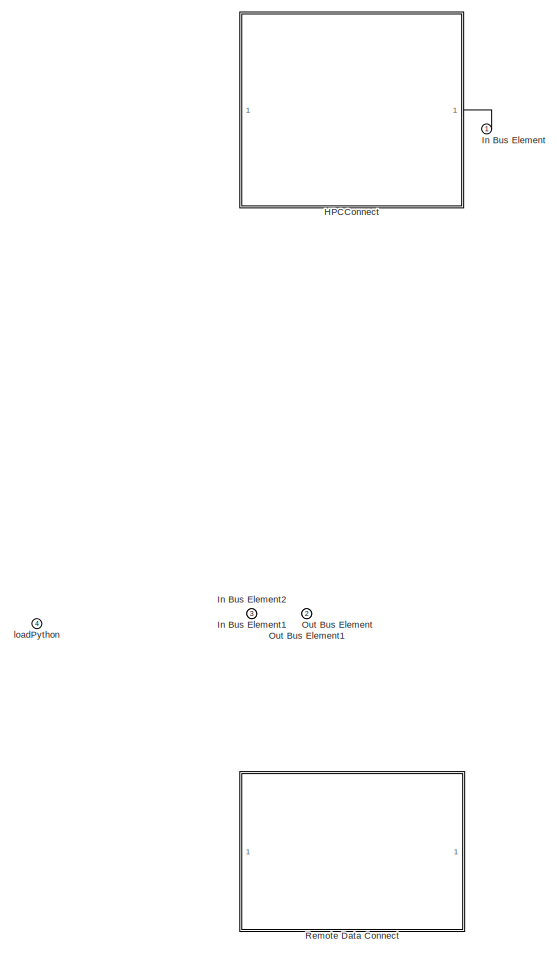
[diagram: root canvas - part 1/3, right side, full height]
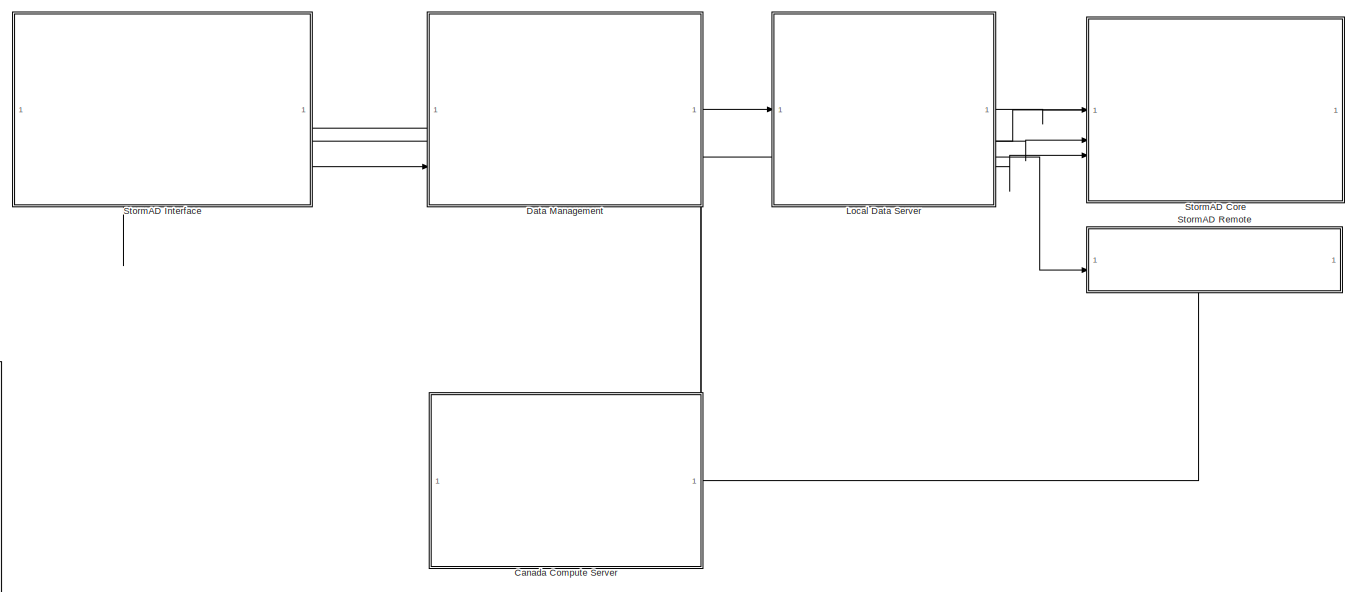
[diagram: root canvas - part 2/3, central region]
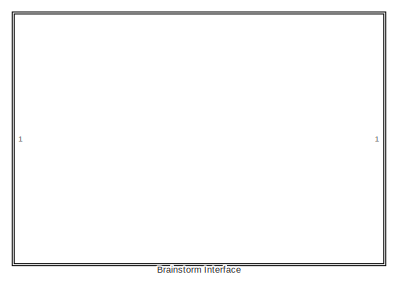
[diagram: root canvas - part 3/3, middle left region]
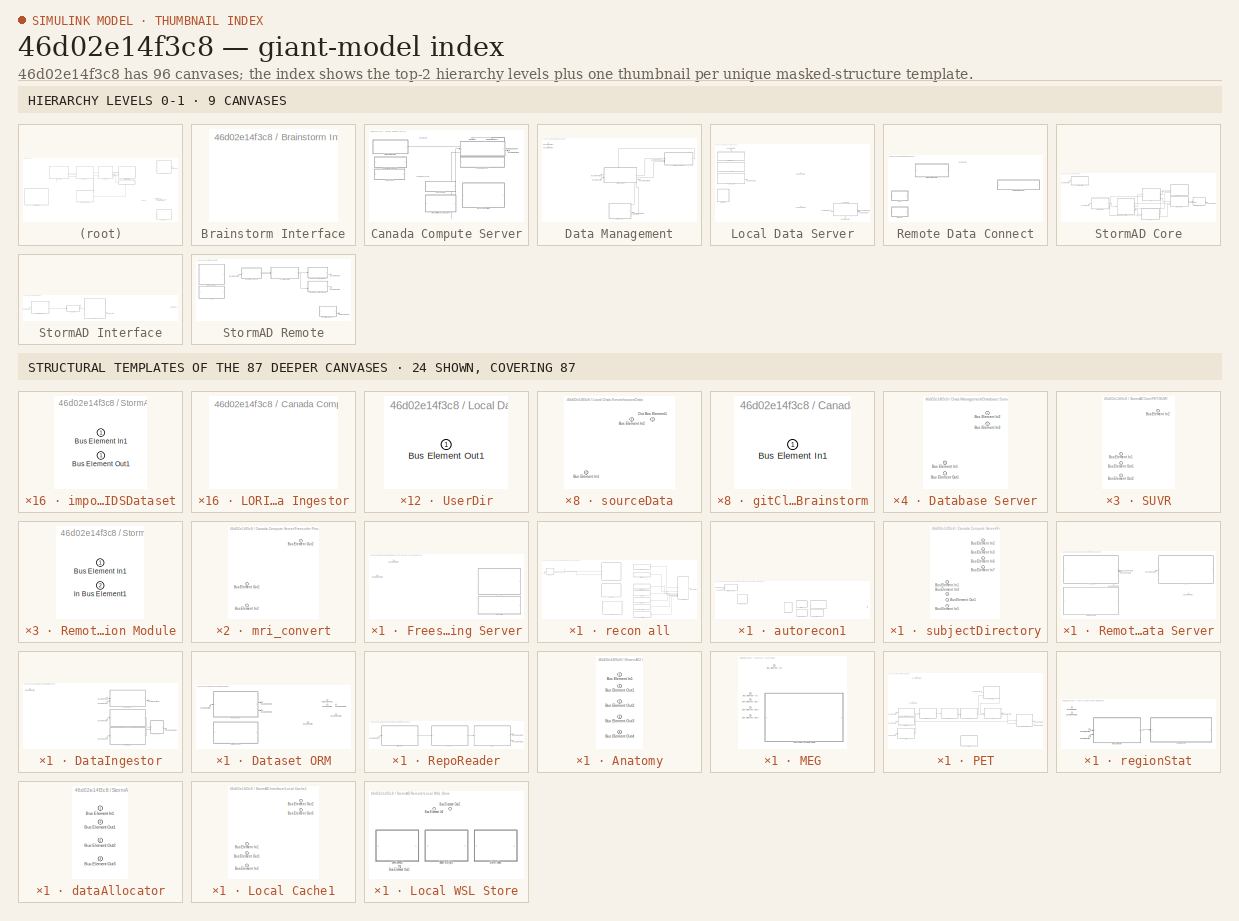
[diagram: thumbnail index - top-2 hierarchy levels (9 canvases) + 24 structural-template representatives of the remaining 87 canvases]
MODEL slx_46d02e14f3c8
KIND model
CONFIG AbsTol = auto
CONFIG EnableMultiTasking = off
CONFIG FixedStep = auto
CONFIG MaxStep = auto
CONFIG MinStep = auto
CONFIG RelTol = 1e-3
CONFIG SampleTimeConstraint = Unconstrained
CONFIG SolverName = FixedStepDiscrete
CONFIG StartTime = 0.0
CONFIG StopTime = 10.0
WORKSPACE source: mxarray member
WORKSPACE bstInterface: Simulink.Bus (value not decoded)
BLOCK [SubSystem] Brainstorm Interface
  PortSchema = {"entries":[{"content":{"headerSize":26,"margin":15,"minimumSpacing":25,"sides":[{"content":{},"type":"ConnectorPlacement.EquallySpacedRectSide","uuid":"7074e736-93ca-48e6-9107-0c0acde2c1e1"},{"content":{"side":"RIGHT"},"type":"ConnectorPlacement.EquallySpacedRectSide","uuid":"49ca3538-4b0a-47e3-9b9f-d0d67086357c"},{"content":{"side":"TOP"},"type":"ConnectorPlacement.EquallySpacedRectSide","uuid":...<+224ch>
BLOCK [SubSystem] Canada Compute Server
  PortSchema = {"entries":[{"content":{"headerSize":26,"margin":15,"minimumSpacing":25,"sides":[{"content":{},"type":"ConnectorPlacement.EquallySpacedRectSide","uuid":"7b7365e4-3e33-4b91-9d81-29acea824425"},{"content":{"connectorIds":["Out1"],"side":"RIGHT"},"type":"ConnectorPlacement.EquallySpacedRectSide","uuid":"c8185be4-14fd-4b07-9d64-196ce2484816"},{"content":{"connectorIds":["Out2","Out3"],"side":"TOP"},"t...<+279ch>
BLOCK [Outport] Canada Compute Server/Bus Element Out1
  AllowServiceAccess = on
BLOCK [SubSystem] Canada Compute Server/Freesurfer Processing Server
  PortSchema = {"entries":[{"content":{"headerSize":26,"margin":15,"minimumSpacing":25,"sides":[{"content":{"connectorIds":["In1"]},"type":"ConnectorPlacement.EquallySpacedRectSide","uuid":"d99db108-8c8a-4010-81b2-f142fbf318f5"},{"content":{"connectorIds":["Out1"],"side":"RIGHT"},"type":"ConnectorPlacement.EquallySpacedRectSide","uuid":"9190d96c-22e3-4cc9-a507-8f094dc67743"},{"content":{"side":"TOP"},"type":"Con...<+396ch>
BLOCK [Inport] Canada Compute Server/Freesurfer Processing Server/Bus Element In1
  AllowServiceAccess = on
BLOCK [Outport] Canada Compute Server/Freesurfer Processing Server/Bus Element Out1
BLOCK [SubSystem] Canada Compute Server/Freesurfer Processing Server/PETSurfer
  PortSchema = {"entries":[{"content":{"headerSize":26,"margin":15,"minimumSpacing":25,"sides":[{"content":{},"type":"ConnectorPlacement.EquallySpacedRectSide","uuid":"d99db108-8c8a-4010-81b2-f142fbf318f5"},{"content":{"connectorIds":["Out1"],"side":"RIGHT"},"type":"ConnectorPlacement.EquallySpacedRectSide","uuid":"9190d96c-22e3-4cc9-a507-8f094dc67743"},{"content":{"side":"TOP"},"type":"ConnectorPlacement.Equall...<+248ch>  <repeated x8 — deduplicated; at blocks: PETSurfer, labelDirectory, mriDirectory, scriptsDirectory, statsDirectory, surfDirectory, tmpDirectory, trashDirectory>
BLOCK [Outport] Canada Compute Server/Freesurfer Processing Server/PETSurfer/Bus Element Out1
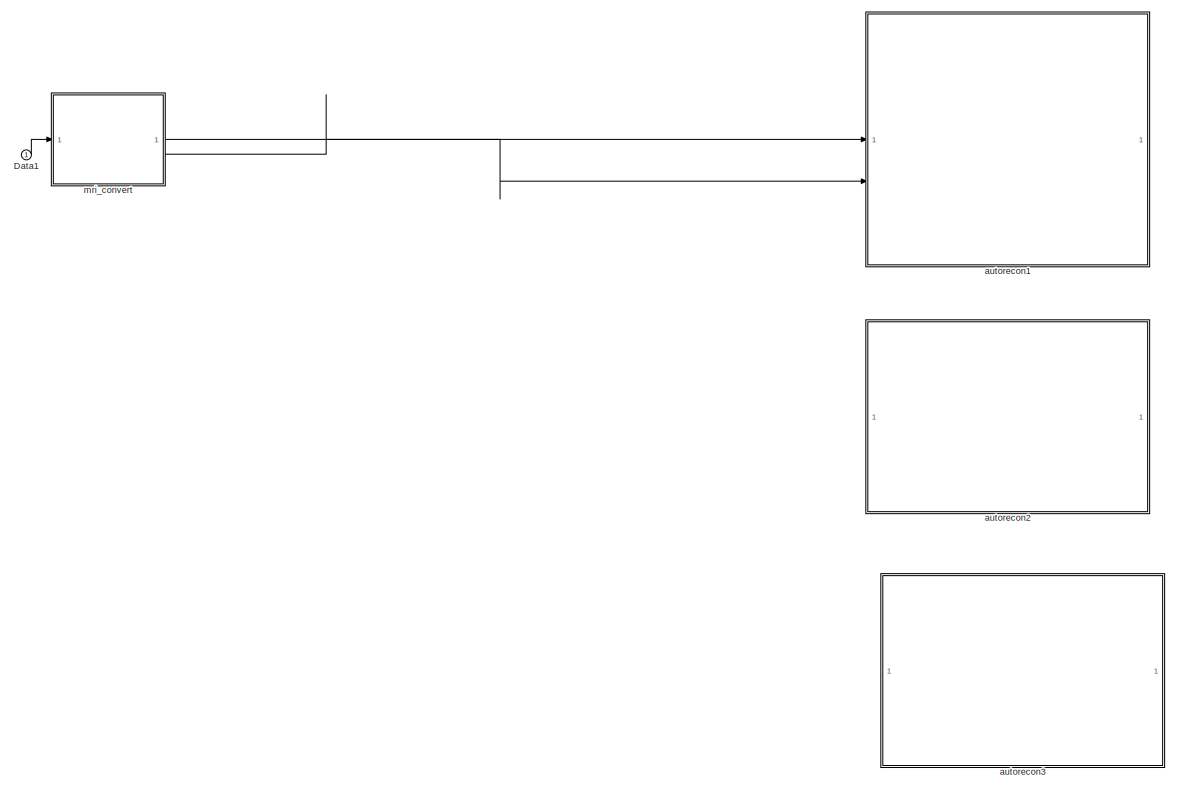
[diagram: Canada Compute Server/Freesurfer Processing Server/recon all - part 1/2, left side, full height]
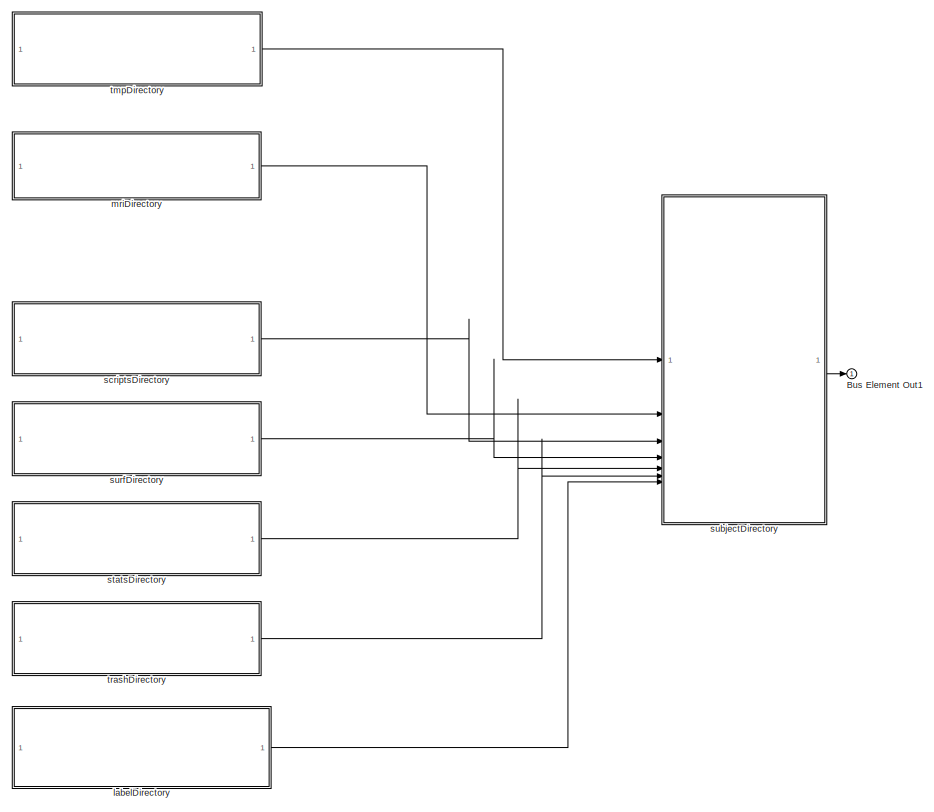
[diagram: Canada Compute Server/Freesurfer Processing Server/recon all - part 2/2, right side, full height]
BLOCK [SubSystem] Canada Compute Server/Freesurfer Processing Server/recon all
  PortSchema = {"entries":[{"content":{"headerSize":26,"margin":15,"minimumSpacing":25,"sides":[{"content":{"connectorIds":["In1"]},"type":"ConnectorPlacement.EquallySpacedRectSide","uuid":"1ec5f43e-86ec-4420-9dd8-c30b843d5131"},{"content":{"connectorIds":["Out1"],"side":"RIGHT"},"type":"ConnectorPlacement.EquallySpacedRectSide","uuid":"372e8174-47dc-4989-909e-f78b7a521fdc"},{"content":{"side":"TOP"},"type":"Con...<+270ch>
BLOCK [Outport] Canada Compute Server/Freesurfer Processing Server/recon all/Bus Element Out1
BLOCK [Inport] Canada Compute Server/Freesurfer Processing Server/recon all/Data1
  AllowServiceAccess = on
BLOCK [SubSystem] Canada Compute Server/Freesurfer Processing Server/recon all/autorecon1
  PortSchema = {"entries":[{"content":{"headerSize":26,"margin":15,"minimumSpacing":25,"sides":[{"content":{"connectorIds":["In1","In2"]},"type":"ConnectorPlacement.EquallySpacedRectSide","uuid":"1ec5f43e-86ec-4420-9dd8-c30b843d5131"},{"content":{"connectorIds":["Out1"],"side":"RIGHT"},"type":"ConnectorPlacement.EquallySpacedRectSide","uuid":"372e8174-47dc-4989-909e-f78b7a521fdc"},{"content":{"side":"TOP"},"type...<+276ch>
BLOCK [Inport] Canada Compute Server/Freesurfer Processing Server/recon all/autorecon1/Bus Element In1
  Port = 2
BLOCK [Inport] Canada Compute Server/Freesurfer Processing Server/recon all/autorecon1/Bus Element In2
BLOCK [SubSystem] Canada Compute Server/Freesurfer Processing Server/recon all/autorecon1/cp
  PortSchema = {"entries":[{"content":{"headerSize":26,"margin":15,"minimumSpacing":25,"sides":[{"content":{"connectorIds":["In1","In2"]},"type":"ConnectorPlacement.EquallySpacedRectSide","uuid":"d99db108-8c8a-4010-81b2-f142fbf318f5"},{"content":{"connectorIds":["Out1","Out2"],"side":"RIGHT"},"type":"ConnectorPlacement.EquallySpacedRectSide","uuid":"9190d96c-22e3-4cc9-a507-8f094dc67743"},{"content":{"side":"TOP"...<+283ch>
BLOCK [Inport] Canada Compute Server/Freesurfer Processing Server/recon all/autorecon1/cp/Bus Element In1
BLOCK [Inport] Canada Compute Server/Freesurfer Processing Server/recon all/autorecon1/cp/Bus Element In2
  Port = 2
BLOCK [Outport] Canada Compute Server/Freesurfer Processing Server/recon all/autorecon1/cp/Bus Element Out1
BLOCK [Outport] Canada Compute Server/Freesurfer Processing Server/recon all/autorecon1/cp/Bus Element Out2
  Port = 2
BLOCK [Outport] Canada Compute Server/Freesurfer Processing Server/recon all/autorecon1/mri2
BLOCK [SubSystem] Canada Compute Server/Freesurfer Processing Server/recon all/autorecon1/mri_convert_2
  PortSchema = {"entries":[{"content":{"headerSize":26,"margin":15,"minimumSpacing":25,"sides":[{"content":{"connectorIds":["In1"]},"type":"ConnectorPlacement.EquallySpacedRectSide","uuid":"d99db108-8c8a-4010-81b2-f142fbf318f5"},{"content":{"connectorIds":["Out1"],"side":"RIGHT"},"type":"ConnectorPlacement.EquallySpacedRectSide","uuid":"9190d96c-22e3-4cc9-a507-8f094dc67743"},{"content":{"side":"TOP"},"type":"Con...<+270ch>  <repeated x8 — deduplicated; at blocks: mri_convert_2, mri_normalize, mri_nu_correct, mri_watershed, talairach, getDerivatives, getRawData, availableDatasetsUI>
BLOCK [Inport] Canada Compute Server/Freesurfer Processing Server/recon all/autorecon1/mri_convert_2/Bus Element In1
BLOCK [Outport] Canada Compute Server/Freesurfer Processing Server/recon all/autorecon1/mri_convert_2/Bus Element Out1
BLOCK [SubSystem] Canada Compute Server/Freesurfer Processing Server/recon all/autorecon1/mri_motion_correct
  PortSchema = {"entries":[{"content":{"headerSize":26,"margin":15,"minimumSpacing":25,"sides":[{"content":{"connectorIds":["In1","In2"]},"type":"ConnectorPlacement.EquallySpacedRectSide","uuid":"d99db108-8c8a-4010-81b2-f142fbf318f5"},{"content":{"connectorIds":["Out1"],"side":"RIGHT"},"type":"ConnectorPlacement.EquallySpacedRectSide","uuid":"9190d96c-22e3-4cc9-a507-8f094dc67743"},{"content":{"side":"TOP"},"type...<+276ch>
BLOCK [Inport] Canada Compute Server/Freesurfer Processing Server/recon all/autorecon1/mri_motion_correct/Bus Element In1
BLOCK [Inport] Canada Compute Server/Freesurfer Processing Server/recon all/autorecon1/mri_motion_correct/Bus Element In2
  Port = 2
BLOCK [Outport] Canada Compute Server/Freesurfer Processing Server/recon all/autorecon1/mri_motion_correct/Bus Element Out1
BLOCK [SubSystem] Canada Compute Server/Freesurfer Processing Server/recon all/autorecon1/mri_normalize
BLOCK [Inport] Canada Compute Server/Freesurfer Processing Server/recon all/autorecon1/mri_normalize/Bus Element In1
BLOCK [Outport] Canada Compute Server/Freesurfer Processing Server/recon all/autorecon1/mri_normalize/Bus Element Out1
BLOCK [SubSystem] Canada Compute Server/Freesurfer Processing Server/recon all/autorecon1/mri_nu_correct
BLOCK [Inport] Canada Compute Server/Freesurfer Processing Server/recon all/autorecon1/mri_nu_correct/Bus Element In1
BLOCK [Outport] Canada Compute Server/Freesurfer Processing Server/recon all/autorecon1/mri_nu_correct/Bus Element Out1
BLOCK [SubSystem] Canada Compute Server/Freesurfer Processing Server/recon all/autorecon1/mri_watershed
BLOCK [Inport] Canada Compute Server/Freesurfer Processing Server/recon all/autorecon1/mri_watershed/Bus Element In1
BLOCK [Outport] Canada Compute Server/Freesurfer Processing Server/recon all/autorecon1/mri_watershed/Bus Element Out1
BLOCK [SubSystem] Canada Compute Server/Freesurfer Processing Server/recon all/autorecon1/talairach
BLOCK [Inport] Canada Compute Server/Freesurfer Processing Server/recon all/autorecon1/talairach/Bus Element In1
BLOCK [Outport] Canada Compute Server/Freesurfer Processing Server/recon all/autorecon1/talairach/Bus Element Out1
BLOCK [SubSystem] Canada Compute Server/Freesurfer Processing Server/recon all/autorecon2
  PortSchema = {"entries":[{"content":{"headerSize":26,"margin":15,"minimumSpacing":25,"sides":[{"content":{},"type":"ConnectorPlacement.EquallySpacedRectSide","uuid":"d99db108-8c8a-4010-81b2-f142fbf318f5"},{"content":{"side":"RIGHT"},"type":"ConnectorPlacement.EquallySpacedRectSide","uuid":"9190d96c-22e3-4cc9-a507-8f094dc67743"},{"content":{"connectorIds":["In1"],"side":"TOP"},"type":"ConnectorPlacement.Equally...<+247ch>
BLOCK [Inport] Canada Compute Server/Freesurfer Processing Server/recon all/autorecon2/Bus Element In1
BLOCK [SubSystem] Canada Compute Server/Freesurfer Processing Server/recon all/autorecon3
  PortSchema = {"entries":[{"content":{"headerSize":26,"margin":15,"minimumSpacing":25,"sides":[{"content":{},"type":"ConnectorPlacement.EquallySpacedRectSide","uuid":"d99db108-8c8a-4010-81b2-f142fbf318f5"},{"content":{"side":"RIGHT"},"type":"ConnectorPlacement.EquallySpacedRectSide","uuid":"9190d96c-22e3-4cc9-a507-8f094dc67743"},{"content":{"side":"TOP"},"type":"ConnectorPlacement.EquallySpacedRectSide","uuid":...<+224ch>
BLOCK [SubSystem] Canada Compute Server/Freesurfer Processing Server/recon all/labelDirectory
BLOCK [Outport] Canada Compute Server/Freesurfer Processing Server/recon all/labelDirectory/Bus Element Out1
BLOCK [SubSystem] Canada Compute Server/Freesurfer Processing Server/recon all/mriDirectory
BLOCK [Outport] Canada Compute Server/Freesurfer Processing Server/recon all/mriDirectory/Bus Element Out1
BLOCK [SubSystem] Canada Compute Server/Freesurfer Processing Server/recon all/mri_convert
  PortSchema = {"entries":[{"content":{"headerSize":26,"margin":15,"minimumSpacing":25,"sides":[{"content":{"connectorIds":["In1"]},"type":"ConnectorPlacement.EquallySpacedRectSide","uuid":"d99db108-8c8a-4010-81b2-f142fbf318f5"},{"content":{"connectorIds":["Out1","Out2"],"side":"RIGHT"},"type":"ConnectorPlacement.EquallySpacedRectSide","uuid":"9190d96c-22e3-4cc9-a507-8f094dc67743"},{"content":{"side":"TOP"},"typ...<+277ch>
BLOCK [Inport] Canada Compute Server/Freesurfer Processing Server/recon all/mri_convert/Bus Element In2
  AllowServiceAccess = on
BLOCK [Outport] Canada Compute Server/Freesurfer Processing Server/recon all/mri_convert/Bus Element Out1
  Port = 2
BLOCK [Outport] Canada Compute Server/Freesurfer Processing Server/recon all/mri_convert/Bus Element Out2
BLOCK [SubSystem] Canada Compute Server/Freesurfer Processing Server/recon all/scriptsDirectory
BLOCK [Outport] Canada Compute Server/Freesurfer Processing Server/recon all/scriptsDirectory/Bus Element Out1
BLOCK [SubSystem] Canada Compute Server/Freesurfer Processing Server/recon all/statsDirectory
BLOCK [Outport] Canada Compute Server/Freesurfer Processing Server/recon all/statsDirectory/Bus Element Out1
BLOCK [SubSystem] Canada Compute Server/Freesurfer Processing Server/recon all/subjectDirectory
  PortSchema = {"entries":[{"content":{"headerSize":26,"margin":15,"minimumSpacing":25,"sides":[{"content":{"connectorIds":["In1","In2","In3","In4","In5","In6","In7"]},"type":"ConnectorPlacement.EquallySpacedRectSide","uuid":"d99db108-8c8a-4010-81b2-f142fbf318f5"},{"content":{"connectorIds":["Out1"],"side":"RIGHT"},"type":"ConnectorPlacement.EquallySpacedRectSide","uuid":"9190d96c-22e3-4cc9-a507-8f094dc67743"},{...<+306ch>
BLOCK [Inport] Canada Compute Server/Freesurfer Processing Server/recon all/subjectDirectory/Bus Element In1
  Port = 5
BLOCK [Inport] Canada Compute Server/Freesurfer Processing Server/recon all/subjectDirectory/Bus Element In2
  Port = 3
BLOCK [Inport] Canada Compute Server/Freesurfer Processing Server/recon all/subjectDirectory/Bus Element In3
  Port = 4
BLOCK [Inport] Canada Compute Server/Freesurfer Processing Server/recon all/subjectDirectory/Bus Element In4
  Port = 6
BLOCK [Inport] Canada Compute Server/Freesurfer Processing Server/recon all/subjectDirectory/Bus Element In5
  Port = 7
BLOCK [Inport] Canada Compute Server/Freesurfer Processing Server/recon all/subjectDirectory/Bus Element In6
  Port = 2
BLOCK [Inport] Canada Compute Server/Freesurfer Processing Server/recon all/subjectDirectory/Bus Element In7
BLOCK [Outport] Canada Compute Server/Freesurfer Processing Server/recon all/subjectDirectory/Bus Element Out1
BLOCK [SubSystem] Canada Compute Server/Freesurfer Processing Server/recon all/surfDirectory
BLOCK [Outport] Canada Compute Server/Freesurfer Processing Server/recon all/surfDirectory/Bus Element Out1
BLOCK [SubSystem] Canada Compute Server/Freesurfer Processing Server/recon all/tmpDirectory
BLOCK [Outport] Canada Compute Server/Freesurfer Processing Server/recon all/tmpDirectory/Bus Element Out1
BLOCK [SubSystem] Canada Compute Server/Freesurfer Processing Server/recon all/trashDirectory
BLOCK [Outport] Canada Compute Server/Freesurfer Processing Server/recon all/trashDirectory/Bus Element Out1
BLOCK [SubSystem] Canada Compute Server/LORIS Data Ingestor
  PortSchema = {"entries":[{"content":{"headerSize":26,"margin":15,"minimumSpacing":25,"sides":[{"content":{},"type":"ConnectorPlacement.EquallySpacedRectSide","uuid":"a3539b9a-22db-4da3-b271-35b287ced3a1"},{"content":{"side":"RIGHT"},"type":"ConnectorPlacement.EquallySpacedRectSide","uuid":"72d9f298-5062-46d4-b3c5-f2fa85d7a7a6"},{"content":{"side":"TOP"},"type":"ConnectorPlacement.EquallySpacedRectSide","uuid":...<+224ch>  <repeated x9 — deduplicated; at blocks: LORIS Data Ingestor, derivativesData, create Virtual Environment, jobScheduler, loadPython, processingSoftware, brainstorm3, featureExtractionModule>
BLOCK [SubSystem] Canada Compute Server/Remote Data Server
  PortSchema = {"entries":[{"content":{"headerSize":26,"margin":15,"minimumSpacing":25,"sides":[{"content":{"connectorIds":["Out1","In1"]},"type":"ConnectorPlacement.EquallySpacedRectSide","uuid":"d99db108-8c8a-4010-81b2-f142fbf318f5"},{"content":{"connectorIds":["Out2"],"side":"RIGHT"},"type":"ConnectorPlacement.EquallySpacedRectSide","uuid":"9190d96c-22e3-4cc9-a507-8f094dc67743"},{"content":{"connectorIds":["O...<+434ch>
BLOCK [SubSystem] Canada Compute Server/Remote Data Server/ sourceData
  PortSchema = {"entries":[{"content":{"headerSize":26,"margin":15,"minimumSpacing":25,"sides":[{"content":{},"type":"ConnectorPlacement.EquallySpacedRectSide","uuid":"a3539b9a-22db-4da3-b271-35b287ced3a1"},{"content":{"connectorIds":["Out1"],"side":"RIGHT"},"type":"ConnectorPlacement.EquallySpacedRectSide","uuid":"72d9f298-5062-46d4-b3c5-f2fa85d7a7a6"},{"content":{"side":"TOP"},"type":"ConnectorPlacement.Equall...<+248ch>  <repeated x3 — deduplicated; at blocks: sourceData, UserDir, remoteConfig>
BLOCK [Outport] Canada Compute Server/Remote Data Server/ sourceData/Bus Element Out1
  AllowServiceAccess = on
BLOCK [Inport] Canada Compute Server/Remote Data Server/Bus Element In1
BLOCK [Outport] Canada Compute Server/Remote Data Server/Bus Element Out1
  AllowServiceAccess = on
  Port = 3
BLOCK [Outport] Canada Compute Server/Remote Data Server/Bus Element Out2
  AllowServiceAccess = on
  Port = 4
BLOCK [Outport] Canada Compute Server/Remote Data Server/Bus Element Out3
  AllowServiceAccess = on
  Port = 2
BLOCK [Outport] Canada Compute Server/Remote Data Server/Bus Element Out4
  AllowServiceAccess = on
BLOCK [SubSystem] Canada Compute Server/Remote Data Server/Home
  PortSchema = {"entries":[{"content":{"headerSize":26,"margin":15,"minimumSpacing":25,"sides":[{"content":{"connectorIds":["Out1"]},"type":"ConnectorPlacement.EquallySpacedRectSide","uuid":"a3539b9a-22db-4da3-b271-35b287ced3a1"},{"content":{"side":"RIGHT"},"type":"ConnectorPlacement.EquallySpacedRectSide","uuid":"72d9f298-5062-46d4-b3c5-f2fa85d7a7a6"},{"content":{"side":"TOP"},"type":"ConnectorPlacement.Equally...<+247ch>
BLOCK [Outport] Canada Compute Server/Remote Data Server/Home/Bus Element Out1
  AllowServiceAccess = on
BLOCK [SubSystem] Canada Compute Server/Remote Data Server/derivativesData
BLOCK [SubSystem] Canada Compute Server/create Virtual Environment
BLOCK [SubSystem] Canada Compute Server/gitClone Brainstorm
  PortSchema = {"entries":[{"content":{"headerSize":26,"margin":15,"minimumSpacing":25,"sides":[{"content":{},"type":"ConnectorPlacement.EquallySpacedRectSide","uuid":"a3539b9a-22db-4da3-b271-35b287ced3a1"},{"content":{"connectorIds":["In1"],"side":"RIGHT"},"type":"ConnectorPlacement.EquallySpacedRectSide","uuid":"72d9f298-5062-46d4-b3c5-f2fa85d7a7a6"},{"content":{"side":"TOP"},"type":"ConnectorPlacement.Equally...<+247ch>
BLOCK [Inport] Canada Compute Server/gitClone Brainstorm/Bus Element In1
  AllowServiceAccess = on
BLOCK [SubSystem] Canada Compute Server/jobScheduler
BLOCK [SubSystem] Canada Compute Server/loadPython
BLOCK [SubSystem] Canada Compute Server/processingSoftware
BLOCK [Outport] Canada Compute Server/remote.derivatives1
  AllowServiceAccess = on
  Port = 3
BLOCK [Outport] Canada Compute Server/remote.raw1
  AllowServiceAccess = on
  Port = 2
BLOCK [SubSystem] Data Management
  PortSchema = {"entries":[{"content":{"headerSize":26,"margin":15,"minimumSpacing":25,"sides":[{"content":{"connectorIds":["In4","Out3"]},"type":"ConnectorPlacement.EquallySpacedRectSide","uuid":"a3539b9a-22db-4da3-b271-35b287ced3a1"},{"content":{"connectorIds":["In3","Out1"],"side":"RIGHT"},"type":"ConnectorPlacement.EquallySpacedRectSide","uuid":"72d9f298-5062-46d4-b3c5-f2fa85d7a7a6"},{"content":{"connectorId...<+462ch>
BLOCK [Inport] Data Management/Bus Element In1
  Port = 4
BLOCK [Inport] Data Management/Bus Element In2
  Port = 3
BLOCK [Inport] Data Management/Bus Element In3
  AllowServiceAccess = on
BLOCK [Inport] Data Management/Bus Element In4
  AllowServiceAccess = on
  Port = 2
BLOCK [Outport] Data Management/Bus Element Out1
BLOCK [Outport] Data Management/Bus Element Out2
  AllowServiceAccess = on
  Port = 3
BLOCK [Outport] Data Management/Bus Element Out3
  Port = 2
BLOCK [SubSystem] Data Management/DataIngestor
  PortSchema = {"entries":[{"content":{"headerSize":26,"margin":15,"minimumSpacing":25,"sides":[{"content":{},"type":"ConnectorPlacement.EquallySpacedRectSide","uuid":"d99db108-8c8a-4010-81b2-f142fbf318f5"},{"content":{"connectorIds":["Out1"],"side":"RIGHT"},"type":"ConnectorPlacement.EquallySpacedRectSide","uuid":"9190d96c-22e3-4cc9-a507-8f094dc67743"},{"content":{"connectorIds":["In3","Out2"],"side":"TOP"},"ty...<+433ch>
BLOCK [Inport] Data Management/DataIngestor/Bus Element In1
  Port = 3
BLOCK [Inport] Data Management/DataIngestor/Bus Element In2
  AllowServiceAccess = on
BLOCK [Inport] Data Management/DataIngestor/Bus Element In3
  AllowServiceAccess = on
  Port = 2
BLOCK [Inport] Data Management/DataIngestor/Bus Element In4
  AllowServiceAccess = on
BLOCK [Inport] Data Management/DataIngestor/Bus Element In5
  AllowServiceAccess = on
  Port = 2
BLOCK [Outport] Data Management/DataIngestor/Bus Element Out1
BLOCK [Outport] Data Management/DataIngestor/Bus Element Out3
  Port = 2
BLOCK [SubSystem] Data Management/DataIngestor/Component
  PortSchema = {"entries":[{"content":{"headerSize":26,"margin":15,"minimumSpacing":25,"sides":[{"content":{"connectorIds":["In1","In2"]},"type":"ConnectorPlacement.EquallySpacedRectSide","uuid":"a3539b9a-22db-4da3-b271-35b287ced3a1"},{"content":{"connectorIds":["Out1"],"side":"RIGHT"},"type":"ConnectorPlacement.EquallySpacedRectSide","uuid":"72d9f298-5062-46d4-b3c5-f2fa85d7a7a6"},{"content":{"side":"TOP"},"type...<+276ch>  <repeated x3 — deduplicated; at blocks: Component, align2anat, maskSelector>
BLOCK [Inport] Data Management/DataIngestor/Component/Bus Element In1
  Port = 2
BLOCK [Inport] Data Management/DataIngestor/Component/Bus Element In2
BLOCK [Outport] Data Management/DataIngestor/Component/Bus Element Out1
BLOCK [SubSystem] Data Management/DataIngestor/getDerivatives
BLOCK [Inport] Data Management/DataIngestor/getDerivatives/Bus Element In1
  AllowServiceAccess = on
BLOCK [Outport] Data Management/DataIngestor/getDerivatives/Bus Element Out1
BLOCK [SubSystem] Data Management/DataIngestor/getRawData
BLOCK [Inport] Data Management/DataIngestor/getRawData/Bus Element In1
  AllowServiceAccess = on
BLOCK [Outport] Data Management/DataIngestor/getRawData/Bus Element Out1
BLOCK [SubSystem] Data Management/DataIngestor/readDataset
  PortSchema = {"entries":[{"content":{"headerSize":26,"margin":15,"minimumSpacing":25,"sides":[{"content":{"connectorIds":["In1","In2"]},"type":"ConnectorPlacement.EquallySpacedRectSide","uuid":"d99db108-8c8a-4010-81b2-f142fbf318f5"},{"content":{"connectorIds":["Out1"],"side":"RIGHT"},"type":"ConnectorPlacement.EquallySpacedRectSide","uuid":"9190d96c-22e3-4cc9-a507-8f094dc67743"},{"content":{"side":"TOP"},"type...<+276ch>
BLOCK [Inport] Data Management/DataIngestor/readDataset/Bus Element In1
  AllowServiceAccess = on
BLOCK [Inport] Data Management/DataIngestor/readDataset/Bus Element In2
  AllowServiceAccess = on
  Port = 2
BLOCK [Outport] Data Management/DataIngestor/readDataset/Bus Element Out1
BLOCK [SubSystem] Data Management/Database Server
  PortSchema = {"entries":[{"content":{"headerSize":26,"margin":15,"minimumSpacing":25,"sides":[{"content":{"connectorIds":["In1","In2","In3"]},"type":"ConnectorPlacement.EquallySpacedRectSide","uuid":"d99db108-8c8a-4010-81b2-f142fbf318f5"},{"content":{"connectorIds":["Out1"],"side":"RIGHT"},"type":"ConnectorPlacement.EquallySpacedRectSide","uuid":"9190d96c-22e3-4cc9-a507-8f094dc67743"},{"content":{"side":"TOP"}...<+408ch>
BLOCK [Inport] Data Management/Database Server/Bus Element In1
  Port = 3
BLOCK [Inport] Data Management/Database Server/Bus Element In2
BLOCK [Inport] Data Management/Database Server/Bus Element In3
  Port = 2
BLOCK [Outport] Data Management/Database Server/Bus Element Out1
  AllowServiceAccess = on
BLOCK [SubSystem] Data Management/Dataset ORM
  PortSchema = {"entries":[{"content":{"headerSize":26,"margin":15,"minimumSpacing":25,"sides":[{"content":{"connectorIds":["Out5","In2"]},"type":"ConnectorPlacement.EquallySpacedRectSide","uuid":"d99db108-8c8a-4010-81b2-f142fbf318f5"},{"content":{"connectorIds":["Out1","Out2","Out4"],"side":"RIGHT"},"type":"ConnectorPlacement.EquallySpacedRectSide","uuid":"9190d96c-22e3-4cc9-a507-8f094dc67743"},{"content":{"con...<+470ch>
BLOCK [Inport] Data Management/Dataset ORM/Bus Element In1
  AllowServiceAccess = on
  Port = 3
BLOCK [Inport] Data Management/Dataset ORM/Bus Element In2
  Port = 2
BLOCK [Inport] Data Management/Dataset ORM/Bus Element In3
BLOCK [Outport] Data Management/Dataset ORM/Bus Element Out1
  Port = 4
BLOCK [Outport] Data Management/Dataset ORM/Bus Element Out2
  Port = 2
BLOCK [Outport] Data Management/Dataset ORM/Bus Element Out3
  Port = 3
BLOCK [Outport] Data Management/Dataset ORM/Bus Element Out5
BLOCK [SubSystem] Data Management/Dataset ORM/DerivativesORM
  PortSchema = {"entries":[{"content":{"headerSize":26,"margin":15,"minimumSpacing":25,"sides":[{"content":{},"type":"ConnectorPlacement.EquallySpacedRectSide","uuid":"d99db108-8c8a-4010-81b2-f142fbf318f5"},{"content":{"side":"RIGHT"},"type":"ConnectorPlacement.EquallySpacedRectSide","uuid":"9190d96c-22e3-4cc9-a507-8f094dc67743"},{"content":{"side":"TOP"},"type":"ConnectorPlacement.EquallySpacedRectSide","uuid":...<+224ch>
BLOCK [Outport] Data Management/Dataset ORM/Out Bus Element1
  Port = 5
BLOCK [SubSystem] Data Management/Dataset ORM/RepoReader
  PortSchema = {"entries":[{"content":{"headerSize":26,"margin":15,"minimumSpacing":25,"sides":[{"content":{"connectorIds":["In1"]},"type":"ConnectorPlacement.EquallySpacedRectSide","uuid":"d99db108-8c8a-4010-81b2-f142fbf318f5"},{"content":{"connectorIds":["Out1","Out2"],"side":"RIGHT"},"type":"ConnectorPlacement.EquallySpacedRectSide","uuid":"9190d96c-22e3-4cc9-a507-8f094dc67743"},{"content":{"side":"TOP"},"typ...<+277ch>
BLOCK [Inport] Data Management/Dataset ORM/RepoReader/Bus Element In1
BLOCK [Outport] Data Management/Dataset ORM/RepoReader/Bus Element Out1
BLOCK [Outport] Data Management/Dataset ORM/RepoReader/Bus Element Out2
  Port = 2
BLOCK [SubSystem] Data Management/Dataset ORM/RepoReader/cleanRepo
  PortSchema = {"entries":[{"content":{"headerSize":26,"margin":15,"minimumSpacing":25,"sides":[{"content":{"connectorIds":["In1"]},"type":"ConnectorPlacement.EquallySpacedRectSide","uuid":"a3539b9a-22db-4da3-b271-35b287ced3a1"},{"content":{"connectorIds":["Out1"],"side":"RIGHT"},"type":"ConnectorPlacement.EquallySpacedRectSide","uuid":"72d9f298-5062-46d4-b3c5-f2fa85d7a7a6"},{"content":{"side":"TOP"},"type":"Con...<+270ch>  <repeated x5 — deduplicated; at blocks: cleanRepo, listDirectories, averagePET, splitPET, surfFinder>
BLOCK [Inport] Data Management/Dataset ORM/RepoReader/cleanRepo/Bus Element In1
BLOCK [Outport] Data Management/Dataset ORM/RepoReader/cleanRepo/Bus Element Out1
BLOCK [SubSystem] Data Management/Dataset ORM/RepoReader/listDirectories
BLOCK [Inport] Data Management/Dataset ORM/RepoReader/listDirectories/Bus Element In1
BLOCK [Outport] Data Management/Dataset ORM/RepoReader/listDirectories/Bus Element Out1
BLOCK [SubSystem] Data Management/Dataset ORM/RepoReader/map
  PortSchema = {"entries":[{"content":{"headerSize":26,"margin":15,"minimumSpacing":25,"sides":[{"content":{"connectorIds":["In1"]},"type":"ConnectorPlacement.EquallySpacedRectSide","uuid":"a3539b9a-22db-4da3-b271-35b287ced3a1"},{"content":{"connectorIds":["Out1","Out2"],"side":"RIGHT"},"type":"ConnectorPlacement.EquallySpacedRectSide","uuid":"72d9f298-5062-46d4-b3c5-f2fa85d7a7a6"},{"content":{"side":"TOP"},"typ...<+277ch>
BLOCK [Inport] Data Management/Dataset ORM/RepoReader/map/Bus Element In1
BLOCK [Outport] Data Management/Dataset ORM/RepoReader/map/Bus Element Out1
BLOCK [Outport] Data Management/Dataset ORM/RepoReader/map/Bus Element Out2
  Port = 2
BLOCK [ModelReference] HPCConnect
  ModelNameDialog = HPCConnect_service.slx
  ModelReferenceVersion = 1.2
  PortSchema = {"entries":[{"content":{"headerSize":38,"margin":15,"minimumSpacing":25,"sides":[{"content":{},"type":"ConnectorPlacement.EquallySpacedRectSide","uuid":"e4721c40-b49e-4ac5-95ff-3d551931e75b"},{"content":{"connectorIds":["In1"],"side":"RIGHT"},"type":"ConnectorPlacement.EquallySpacedRectSide","uuid":"c82ecebb-3746-4618-8630-b662b5164920"},{"content":{"side":"TOP"},"type":"ConnectorPlacement.Equally...<+247ch>
  ScheduleRates = on
BLOCK [Inport] In Bus Element
  AllowServiceAccess = on
BLOCK [Inport] In Bus Element1
  AllowServiceAccess = on
  Port = 2
BLOCK [Inport] In Bus Element2
  Port = 3
BLOCK [SubSystem] Local Data Server
  PortSchema = {"entries":[{"content":{"headerSize":26,"margin":15,"minimumSpacing":25,"sides":[{"content":{"connectorIds":["Out5","In1"]},"type":"ConnectorPlacement.EquallySpacedRectSide","uuid":"a3539b9a-22db-4da3-b271-35b287ced3a1"},{"content":{"connectorIds":["Out1","Out2","Out4","Out3"],"side":"RIGHT"},"type":"ConnectorPlacement.EquallySpacedRectSide","uuid":"72d9f298-5062-46d4-b3c5-f2fa85d7a7a6"},{"content...<+447ch>
BLOCK [Inport] Local Data Server/Bus Element In1
BLOCK [Inport] Local Data Server/Bus Element In2
  AllowServiceAccess = on
  Port = 2
BLOCK [Inport] Local Data Server/Bus Element In3
  AllowServiceAccess = on
  Port = 2
BLOCK [Outport] Local Data Server/Bus Element Out1
  Port = 5
BLOCK [Outport] Local Data Server/Bus Element Out2
  AllowServiceAccess = on
  Port = 3
BLOCK [Outport] Local Data Server/Bus Element Out3
BLOCK [Outport] Local Data Server/Bus Element Out4
  AllowServiceAccess = on
  Port = 2
BLOCK [Outport] Local Data Server/Bus Element Out5
  AllowServiceAccess = on
  Port = 4
BLOCK [SubSystem] Local Data Server/UserDir
BLOCK [Outport] Local Data Server/UserDir/Bus Element Out1
  AllowServiceAccess = on
BLOCK [SubSystem] Local Data Server/brainstorm3
BLOCK [SubSystem] Local Data Server/brainstorm_db
  PortSchema = {"entries":[{"content":{"headerSize":26,"margin":15,"minimumSpacing":25,"sides":[{"content":{},"type":"ConnectorPlacement.EquallySpacedRectSide","uuid":"a3539b9a-22db-4da3-b271-35b287ced3a1"},{"content":{"side":"RIGHT"},"type":"ConnectorPlacement.EquallySpacedRectSide","uuid":"72d9f298-5062-46d4-b3c5-f2fa85d7a7a6"},{"content":{"connectorIds":["In1"],"side":"TOP"},"type":"ConnectorPlacement.Equally...<+247ch>
BLOCK [Inport] Local Data Server/brainstorm_db/Bus Element In1
  AllowServiceAccess = on
BLOCK [SubSystem] Local Data Server/remoteConfig
BLOCK [Outport] Local Data Server/remoteConfig/Bus Element Out1
  AllowServiceAccess = on
BLOCK [SubSystem] Local Data Server/sourceData
  PortSchema = {"entries":[{"content":{"headerSize":26,"margin":15,"minimumSpacing":25,"sides":[{"content":{"connectorIds":["In2"]},"type":"ConnectorPlacement.EquallySpacedRectSide","uuid":"1ec5f43e-86ec-4420-9dd8-c30b843d5131"},{"content":{"connectorIds":["Out1"],"side":"RIGHT"},"type":"ConnectorPlacement.EquallySpacedRectSide","uuid":"372e8174-47dc-4989-909e-f78b7a521fdc"},{"content":{"side":"TOP"},"type":"Con...<+419ch>
BLOCK [Inport] Local Data Server/sourceData/Bus Element In1
  Port = 2
BLOCK [Inport] Local Data Server/sourceData/Bus Element In2
  AllowServiceAccess = on
BLOCK [Outport] Local Data Server/sourceData/Out Bus Element1
BLOCK [Outport] Out Bus Element
  AllowServiceAccess = on
BLOCK [Outport] Out Bus Element1
  Port = 2
BLOCK [SubSystem] Remote Data Connect
  PortSchema = {"entries":[{"content":{"headerSize":26,"margin":15,"minimumSpacing":25,"sides":[{"content":{},"type":"ConnectorPlacement.EquallySpacedRectSide","uuid":"7074e736-93ca-48e6-9107-0c0acde2c1e1"},{"content":{"side":"RIGHT"},"type":"ConnectorPlacement.EquallySpacedRectSide","uuid":"49ca3538-4b0a-47e3-9b9f-d0d67086357c"},{"content":{"side":"TOP"},"type":"ConnectorPlacement.EquallySpacedRectSide","uuid":...<+224ch>
BLOCK [SubSystem] Remote Data Connect/LORIS Data Ingestor
  VariantControl = LORIS Data Ingestor
BLOCK [SubSystem] Remote Data Connect/Linux
  PortSchema = {"entries":[{"content":{"headerSize":26,"margin":15,"minimumSpacing":25,"sides":[{"content":{},"type":"ConnectorPlacement.EquallySpacedRectSide","uuid":"911b8937-6523-479c-8943-03fc0840c002"},{"content":{"connectorIds":["In1"],"side":"RIGHT"},"type":"ConnectorPlacement.EquallySpacedRectSide","uuid":"173af9ff-b0ec-4d9e-90c2-c5784cb94bd8"},{"content":{"side":"TOP"},"type":"ConnectorPlacement.Equally...<+247ch>
  VariantControl = true
BLOCK [Inport] Remote Data Connect/Linux/Bus Element In1
  AllowServiceAccess = on
BLOCK [SubSystem] Remote Data Connect/Windows
  PortSchema = {"entries":[{"content":{"headerSize":26,"margin":15,"minimumSpacing":25,"sides":[{"content":{},"type":"ConnectorPlacement.EquallySpacedRectSide","uuid":"911b8937-6523-479c-8943-03fc0840c002"},{"content":{"connectorIds":["In1"],"side":"RIGHT"},"type":"ConnectorPlacement.EquallySpacedRectSide","uuid":"173af9ff-b0ec-4d9e-90c2-c5784cb94bd8"},{"content":{"side":"TOP"},"type":"ConnectorPlacement.Equally...<+247ch>
  VariantControl = false
BLOCK [Inport] Remote Data Connect/Windows/Bus Element In1
  AllowServiceAccess = on
BLOCK [SubSystem] Remote Data Connect/gitClone Brainstorm
  PortSchema = {"entries":[{"content":{"headerSize":26,"margin":15,"minimumSpacing":25,"sides":[{"content":{},"type":"ConnectorPlacement.EquallySpacedRectSide","uuid":"a3539b9a-22db-4da3-b271-35b287ced3a1"},{"content":{"connectorIds":["In1"],"side":"RIGHT"},"type":"ConnectorPlacement.EquallySpacedRectSide","uuid":"72d9f298-5062-46d4-b3c5-f2fa85d7a7a6"},{"content":{"side":"TOP"},"type":"ConnectorPlacement.Equally...<+247ch>
  VariantControl = gitClone Brainstorm
BLOCK [Inport] Remote Data Connect/gitClone Brainstorm/Bus Element In1
  AllowServiceAccess = on
BLOCK [SubSystem] StormAD Core
  PortSchema = {"entries":[{"content":{"headerSize":26,"margin":15,"minimumSpacing":25,"sides":[{"content":{"connectorIds":["In1","In2","In3"]},"type":"ConnectorPlacement.EquallySpacedRectSide","uuid":"d99db108-8c8a-4010-81b2-f142fbf318f5"},{"content":{"side":"RIGHT"},"type":"ConnectorPlacement.EquallySpacedRectSide","uuid":"9190d96c-22e3-4cc9-a507-8f094dc67743"},{"content":{"connectorIds":["Out1"],"side":"TOP"}...<+408ch>
BLOCK [SubSystem] StormAD Core/Anatomy
  PortSchema = {"entries":[{"content":{"headerSize":26,"margin":15,"minimumSpacing":25,"sides":[{"content":{"connectorIds":["In1"]},"type":"ConnectorPlacement.EquallySpacedRectSide","uuid":"d99db108-8c8a-4010-81b2-f142fbf318f5"},{"content":{"connectorIds":["Out1","Out2","Out3","Out4"],"side":"RIGHT"},"type":"ConnectorPlacement.EquallySpacedRectSide","uuid":"9190d96c-22e3-4cc9-a507-8f094dc67743"},{"content":{"sid...<+291ch>
BLOCK [Inport] StormAD Core/Anatomy/Bus Element In1
BLOCK [Outport] StormAD Core/Anatomy/Bus Element Out1
BLOCK [Outport] StormAD Core/Anatomy/Bus Element Out2
  Port = 2
BLOCK [Outport] StormAD Core/Anatomy/Bus Element Out3
  Port = 3
BLOCK [Outport] StormAD Core/Anatomy/Bus Element Out4
  Port = 4
BLOCK [Inport] StormAD Core/Bus Element In1
  AllowServiceAccess = on
  Port = 2
BLOCK [Inport] StormAD Core/Bus Element In2
  AllowServiceAccess = on
  Port = 3
BLOCK [Inport] StormAD Core/Bus Element In3
BLOCK [SubSystem] StormAD Core/MEG
  PortSchema = {"entries":[{"content":{"headerSize":26,"margin":15,"minimumSpacing":25,"sides":[{"content":{"connectorIds":["In1","In2"]},"type":"ConnectorPlacement.EquallySpacedRectSide","uuid":"d99db108-8c8a-4010-81b2-f142fbf318f5"},{"content":{"connectorIds":["Out1","Out2","Out3"],"side":"RIGHT"},"type":"ConnectorPlacement.EquallySpacedRectSide","uuid":"9190d96c-22e3-4cc9-a507-8f094dc67743"},{"content":{"side...<+290ch>
BLOCK [Inport] StormAD Core/MEG/Bus Element In1
  Port = 2
BLOCK [Inport] StormAD Core/MEG/Bus Element In2
BLOCK [Outport] StormAD Core/MEG/Bus Element Out1
BLOCK [Outport] StormAD Core/MEG/Bus Element Out2
  Port = 2
BLOCK [Outport] StormAD Core/MEG/Bus Element Out3
  Port = 3
BLOCK [SubSystem] StormAD Core/MEG/featureExtractionModule
BLOCK [Outport] StormAD Core/Out Bus Element1
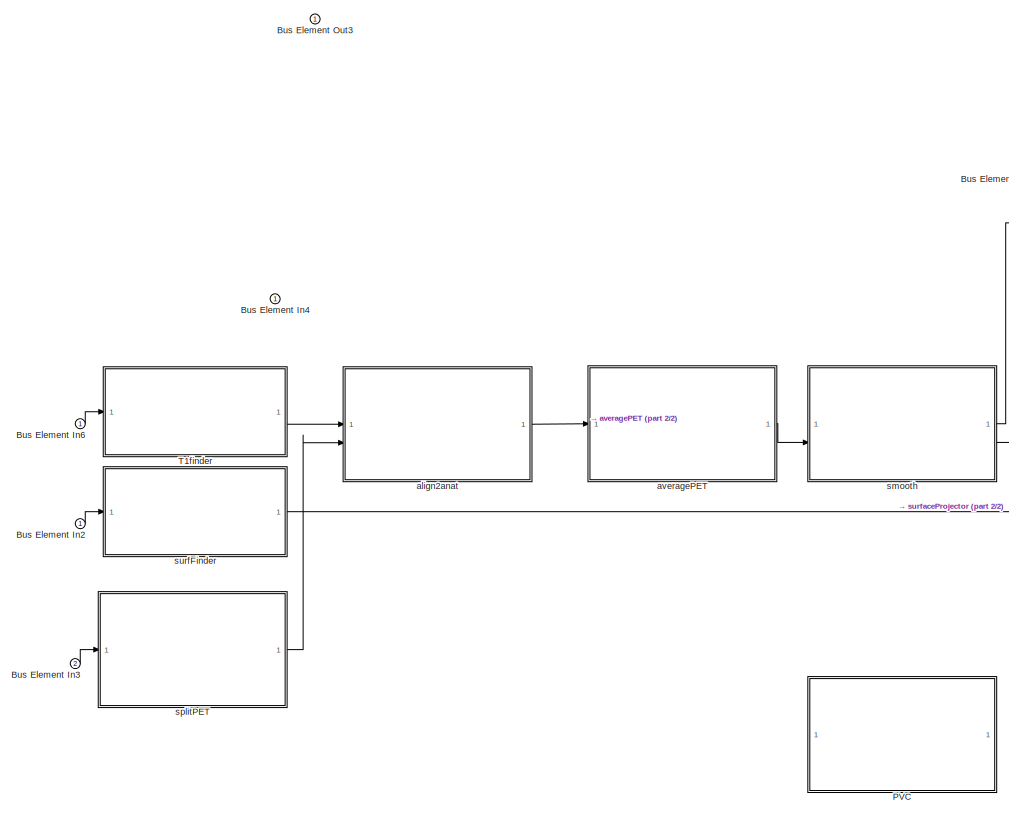
[diagram: StormAD Core/PET - part 1/2, left side, full height]
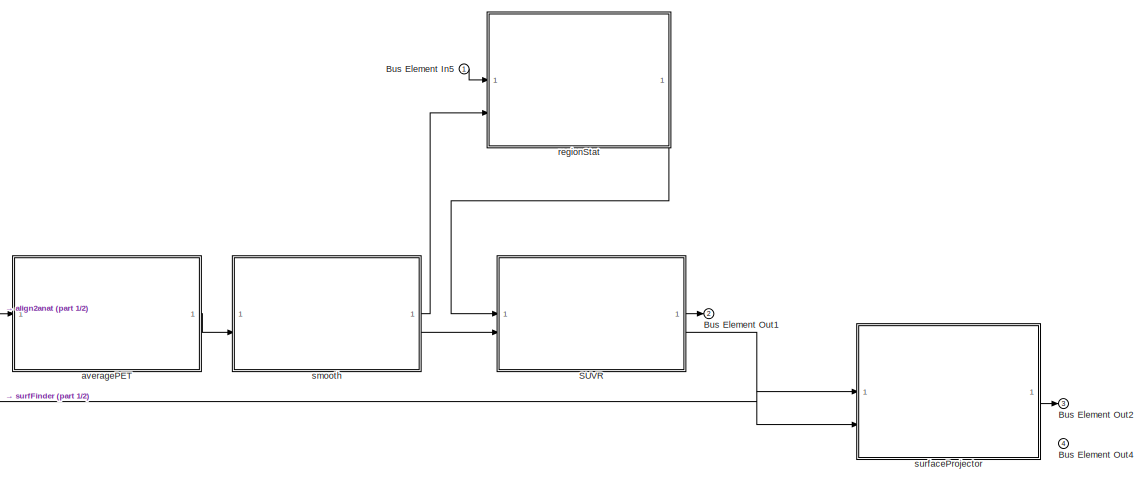
[diagram: StormAD Core/PET - part 2/2, central region]
BLOCK [SubSystem] StormAD Core/PET
  PortSchema = {"entries":[{"content":{"headerSize":26,"margin":15,"minimumSpacing":25,"sides":[{"content":{"connectorIds":["In1","In2"]},"type":"ConnectorPlacement.EquallySpacedRectSide","uuid":"d99db108-8c8a-4010-81b2-f142fbf318f5"},{"content":{"connectorIds":["Out1","Out2","Out3","Out4"],"side":"RIGHT"},"type":"ConnectorPlacement.EquallySpacedRectSide","uuid":"9190d96c-22e3-4cc9-a507-8f094dc67743"},{"content"...<+297ch>
BLOCK [Inport] StormAD Core/PET/Bus Element In2
BLOCK [Inport] StormAD Core/PET/Bus Element In3
  Port = 2
BLOCK [Inport] StormAD Core/PET/Bus Element In4
BLOCK [Inport] StormAD Core/PET/Bus Element In5
BLOCK [Inport] StormAD Core/PET/Bus Element In6
BLOCK [Outport] StormAD Core/PET/Bus Element Out1
  Port = 2
BLOCK [Outport] StormAD Core/PET/Bus Element Out2
  Port = 3
BLOCK [Outport] StormAD Core/PET/Bus Element Out3
BLOCK [Outport] StormAD Core/PET/Bus Element Out4
  Port = 4
BLOCK [SubSystem] StormAD Core/PET/PVC
  PortSchema = {"entries":[{"content":{"headerSize":26,"margin":15,"minimumSpacing":25,"sides":[{"content":{"connectorIds":["In1","In2"]},"type":"ConnectorPlacement.EquallySpacedRectSide","uuid":"a3539b9a-22db-4da3-b271-35b287ced3a1"},{"content":{"side":"RIGHT"},"type":"ConnectorPlacement.EquallySpacedRectSide","uuid":"72d9f298-5062-46d4-b3c5-f2fa85d7a7a6"},{"content":{"side":"TOP"},"type":"ConnectorPlacement.Eq...<+252ch>
BLOCK [Inport] StormAD Core/PET/PVC/Bus Element In1
  Port = 2
BLOCK [Inport] StormAD Core/PET/PVC/Bus Element In2
BLOCK [SubSystem] StormAD Core/PET/SUVR
  PortSchema = {"entries":[{"content":{"headerSize":26,"margin":15,"minimumSpacing":25,"sides":[{"content":{"connectorIds":["In1","In2"]},"type":"ConnectorPlacement.EquallySpacedRectSide","uuid":"a3539b9a-22db-4da3-b271-35b287ced3a1"},{"content":{"connectorIds":["Out1","Out2"],"side":"RIGHT"},"type":"ConnectorPlacement.EquallySpacedRectSide","uuid":"72d9f298-5062-46d4-b3c5-f2fa85d7a7a6"},{"content":{"side":"TOP"...<+283ch>
BLOCK [Inport] StormAD Core/PET/SUVR/Bus Element In1
  Port = 2
BLOCK [Inport] StormAD Core/PET/SUVR/Bus Element In2
BLOCK [Outport] StormAD Core/PET/SUVR/Bus Element Out1
BLOCK [Outport] StormAD Core/PET/SUVR/Bus Element Out2
  Port = 2
BLOCK [SubSystem] StormAD Core/PET/T1finder
  PortSchema = {"entries":[{"content":{"headerSize":26,"margin":15,"minimumSpacing":25,"sides":[{"content":{"connectorIds":["In1"]},"type":"ConnectorPlacement.EquallySpacedRectSide","uuid":"a3539b9a-22db-4da3-b271-35b287ced3a1"},{"content":{"connectorIds":["Out1"],"side":"RIGHT"},"type":"ConnectorPlacement.EquallySpacedRectSide","uuid":"72d9f298-5062-46d4-b3c5-f2fa85d7a7a6"},{"content":{"side":"TOP"},"type":"Con...<+396ch>
BLOCK [Inport] StormAD Core/PET/T1finder/Bus Element In1
BLOCK [Outport] StormAD Core/PET/T1finder/Bus Element Out1
BLOCK [SubSystem] StormAD Core/PET/align2anat
BLOCK [Inport] StormAD Core/PET/align2anat/Bus Element In1
BLOCK [Inport] StormAD Core/PET/align2anat/Bus Element In3
  Port = 2
BLOCK [Outport] StormAD Core/PET/align2anat/Bus Element Out1
BLOCK [SubSystem] StormAD Core/PET/averagePET
BLOCK [Inport] StormAD Core/PET/averagePET/Bus Element In1
BLOCK [Outport] StormAD Core/PET/averagePET/Bus Element Out1
BLOCK [SubSystem] StormAD Core/PET/regionStat
  PortSchema = {"entries":[{"content":{"headerSize":26,"margin":15,"minimumSpacing":25,"sides":[{"content":{"connectorIds":["In1","In2","In3"]},"type":"ConnectorPlacement.EquallySpacedRectSide","uuid":"a3539b9a-22db-4da3-b271-35b287ced3a1"},{"content":{"connectorIds":["Out1"],"side":"RIGHT"},"type":"ConnectorPlacement.EquallySpacedRectSide","uuid":"72d9f298-5062-46d4-b3c5-f2fa85d7a7a6"},{"content":{"side":"TOP"}...<+282ch>  <repeated x3 — deduplicated; at blocks: regionStat, derivsRouter, derivsTracker>
BLOCK [Inport] StormAD Core/PET/regionStat/Bus Element In1
BLOCK [Inport] StormAD Core/PET/regionStat/Bus Element In3
  Port = 2
BLOCK [Inport] StormAD Core/PET/regionStat/Bus Element In4
  Port = 3
BLOCK [Outport] StormAD Core/PET/regionStat/Bus Element Out1
BLOCK [SubSystem] StormAD Core/PET/regionStat/maskSelector
BLOCK [Inport] StormAD Core/PET/regionStat/maskSelector/Bus Element In1
  Port = 2
BLOCK [Inport] StormAD Core/PET/regionStat/maskSelector/Bus Element In2
BLOCK [Outport] StormAD Core/PET/regionStat/maskSelector/Bus Element Out1
BLOCK [SubSystem] StormAD Core/PET/regionStat/smoothedPET
  PortSchema = {"entries":[{"content":{"headerSize":26,"margin":15,"minimumSpacing":25,"sides":[{"content":{"connectorIds":["In1"]},"type":"ConnectorPlacement.EquallySpacedRectSide","uuid":"a3539b9a-22db-4da3-b271-35b287ced3a1"},{"content":{"side":"RIGHT"},"type":"ConnectorPlacement.EquallySpacedRectSide","uuid":"72d9f298-5062-46d4-b3c5-f2fa85d7a7a6"},{"content":{"side":"TOP"},"type":"ConnectorPlacement.EquallyS...<+246ch>
BLOCK [Inport] StormAD Core/PET/regionStat/smoothedPET/Bus Element In1
BLOCK [SubSystem] StormAD Core/PET/smooth
  PortSchema = {"entries":[{"content":{"headerSize":26,"margin":15,"minimumSpacing":25,"sides":[{"content":{"connectorIds":["In1","In2"]},"type":"ConnectorPlacement.EquallySpacedRectSide","uuid":"a3539b9a-22db-4da3-b271-35b287ced3a1"},{"content":{"connectorIds":["Out1","Out2"],"side":"RIGHT"},"type":"ConnectorPlacement.EquallySpacedRectSide","uuid":"72d9f298-5062-46d4-b3c5-f2fa85d7a7a6"},{"content":{"side":"TOP"...<+283ch>
BLOCK [Inport] StormAD Core/PET/smooth/Bus Element In1
  Port = 2
BLOCK [Inport] StormAD Core/PET/smooth/Bus Element In2
BLOCK [Outport] StormAD Core/PET/smooth/Bus Element Out1
  Port = 2
BLOCK [Outport] StormAD Core/PET/smooth/Bus Element Out2
BLOCK [SubSystem] StormAD Core/PET/splitPET
BLOCK [Inport] StormAD Core/PET/splitPET/Bus Element In1
BLOCK [Outport] StormAD Core/PET/splitPET/Bus Element Out1
BLOCK [SubSystem] StormAD Core/PET/surfFinder
BLOCK [Inport] StormAD Core/PET/surfFinder/Bus Element In1
BLOCK [Outport] StormAD Core/PET/surfFinder/Bus Element Out1
BLOCK [SubSystem] StormAD Core/PET/surfaceProjector
  PortSchema = {"entries":[{"content":{"headerSize":26,"margin":15,"minimumSpacing":25,"sides":[{"content":{"connectorIds":["In1","In3","In2"]},"type":"ConnectorPlacement.EquallySpacedRectSide","uuid":"a3539b9a-22db-4da3-b271-35b287ced3a1"},{"content":{"connectorIds":["Out1"],"side":"RIGHT"},"type":"ConnectorPlacement.EquallySpacedRectSide","uuid":"72d9f298-5062-46d4-b3c5-f2fa85d7a7a6"},{"content":{"side":"TOP"}...<+408ch>
BLOCK [Inport] StormAD Core/PET/surfaceProjector/Bus Element In1
  Port = 3
BLOCK [Inport] StormAD Core/PET/surfaceProjector/Bus Element In2
  Port = 2
BLOCK [Inport] StormAD Core/PET/surfaceProjector/Bus Element In3
BLOCK [Outport] StormAD Core/PET/surfaceProjector/Bus Element Out1
BLOCK [SubSystem] StormAD Core/UserConfig
  PortSchema = {"entries":[{"content":{"headerSize":26,"margin":15,"minimumSpacing":25,"sides":[{"content":{"connectorIds":["In1"]},"type":"ConnectorPlacement.EquallySpacedRectSide","uuid":"2137c5ed-fa53-439b-a426-32e4a43756b1"},{"content":{"side":"RIGHT"},"type":"ConnectorPlacement.EquallySpacedRectSide","uuid":"48b1940f-4cec-47e5-85cc-9407b18f8963"},{"content":{"side":"TOP"},"type":"ConnectorPlacement.EquallyS...<+246ch>
BLOCK [Inport] StormAD Core/UserConfig/Bus Element In1
BLOCK [SubSystem] StormAD Core/dataAllocator
  PortSchema = {"entries":[{"content":{"headerSize":26,"margin":15,"minimumSpacing":25,"sides":[{"content":{"connectorIds":["In1"]},"type":"ConnectorPlacement.EquallySpacedRectSide","uuid":"a3539b9a-22db-4da3-b271-35b287ced3a1"},{"content":{"connectorIds":["Out2","Out1","Out3"],"side":"RIGHT"},"type":"ConnectorPlacement.EquallySpacedRectSide","uuid":"72d9f298-5062-46d4-b3c5-f2fa85d7a7a6"},{"content":{"side":"TOP...<+284ch>
BLOCK [Inport] StormAD Core/dataAllocator/Bus Element In1
  AllowServiceAccess = on
BLOCK [Outport] StormAD Core/dataAllocator/Bus Element Out1
BLOCK [Outport] StormAD Core/dataAllocator/Bus Element Out2
  Port = 2
BLOCK [Outport] StormAD Core/dataAllocator/Bus Element Out3
  Port = 3
BLOCK [SubSystem] StormAD Core/derivsRouter
BLOCK [Inport] StormAD Core/derivsRouter/Bus Element In1
BLOCK [Inport] StormAD Core/derivsRouter/Bus Element In2
  Port = 3
BLOCK [Inport] StormAD Core/derivsRouter/Bus Element In3
  Port = 2
BLOCK [Outport] StormAD Core/derivsRouter/Bus Element Out1
  AllowServiceAccess = on
BLOCK [SubSystem] StormAD Core/derivsTracker
BLOCK [Inport] StormAD Core/derivsTracker/Bus Element In1
BLOCK [Inport] StormAD Core/derivsTracker/Bus Element In2
  Port = 2
BLOCK [Inport] StormAD Core/derivsTracker/Bus Element In3
  Port = 3
BLOCK [Outport] StormAD Core/derivsTracker/Bus Element Out1
  AllowServiceAccess = on
BLOCK [SubSystem] StormAD Core/importBIDSDataset
  PortSchema = {"entries":[{"content":{"headerSize":26,"margin":15,"minimumSpacing":25,"sides":[{"content":{"connectorIds":["In1"]},"type":"ConnectorPlacement.EquallySpacedRectSide","uuid":"2137c5ed-fa53-439b-a426-32e4a43756b1"},{"content":{"connectorIds":["Out1"],"side":"RIGHT"},"type":"ConnectorPlacement.EquallySpacedRectSide","uuid":"48b1940f-4cec-47e5-85cc-9407b18f8963"},{"content":{"side":"TOP"},"type":"Con...<+270ch>
BLOCK [Inport] StormAD Core/importBIDSDataset/Bus Element In1
  AllowServiceAccess = on
BLOCK [Outport] StormAD Core/importBIDSDataset/Bus Element Out1
  AllowServiceAccess = on
BLOCK [SubSystem] StormAD Interface
  PortSchema = {"entries":[{"content":{"headerSize":26,"margin":15,"minimumSpacing":25,"sides":[{"content":{"connectorIds":["In1"]},"type":"ConnectorPlacement.EquallySpacedRectSide","uuid":"d99db108-8c8a-4010-81b2-f142fbf318f5"},{"content":{"connectorIds":["Out1","In2"],"side":"RIGHT"},"type":"ConnectorPlacement.EquallySpacedRectSide","uuid":"9190d96c-22e3-4cc9-a507-8f094dc67743"},{"content":{"side":"TOP"},"type...<+402ch>
BLOCK [Inport] StormAD Interface/Bus Element In1
BLOCK [Outport] StormAD Interface/Bus Element Out4
BLOCK [Inport] StormAD Interface/In Bus Element1
  Port = 2
BLOCK [SubSystem] StormAD Interface/Local Cache1
  PortSchema = {"entries":[{"content":{"headerSize":26,"margin":15,"minimumSpacing":25,"sides":[{"content":{"connectorIds":["In1","In2"]},"type":"ConnectorPlacement.EquallySpacedRectSide","uuid":"d99db108-8c8a-4010-81b2-f142fbf318f5"},{"content":{"connectorIds":["Out1","Out2","Out3"],"side":"RIGHT"},"type":"ConnectorPlacement.EquallySpacedRectSide","uuid":"9190d96c-22e3-4cc9-a507-8f094dc67743"},{"content":{"side...<+290ch>
BLOCK [Inport] StormAD Interface/Local Cache1/Bus Element In1
BLOCK [Inport] StormAD Interface/Local Cache1/Bus Element In2
  Port = 2
BLOCK [Outport] StormAD Interface/Local Cache1/Bus Element Out1
  Port = 3
BLOCK [Outport] StormAD Interface/Local Cache1/Bus Element Out2
BLOCK [Outport] StormAD Interface/Local Cache1/Bus Element Out3
  Port = 2
BLOCK [SubSystem] StormAD Interface/availableDatasetsUI
BLOCK [Inport] StormAD Interface/availableDatasetsUI/Bus Element In1
BLOCK [Outport] StormAD Interface/availableDatasetsUI/Bus Element Out1
BLOCK [SubSystem] StormAD Interface/ingestData
  PortSchema = {"entries":[{"content":{"headerSize":26,"margin":15,"minimumSpacing":25,"sides":[{"content":{"connectorIds":["In1","In2"]},"type":"ConnectorPlacement.EquallySpacedRectSide","uuid":"d99db108-8c8a-4010-81b2-f142fbf318f5"},{"content":{"connectorIds":["Out1"],"side":"RIGHT"},"type":"ConnectorPlacement.EquallySpacedRectSide","uuid":"9190d96c-22e3-4cc9-a507-8f094dc67743"},{"content":{"side":"TOP"},"type...<+402ch>
BLOCK [Inport] StormAD Interface/ingestData/Bus Element In1
BLOCK [Inport] StormAD Interface/ingestData/Bus Element In2
  Port = 2
BLOCK [Outport] StormAD Interface/ingestData/Bus Element Out1
BLOCK [SubSystem] StormAD Remote
  PortSchema = {"entries":[{"content":{"headerSize":26,"margin":15,"minimumSpacing":25,"sides":[{"content":{"connectorIds":["In2"]},"type":"ConnectorPlacement.EquallySpacedRectSide","uuid":"a3539b9a-22db-4da3-b271-35b287ced3a1"},{"content":{"connectorIds":["Out1"],"side":"RIGHT"},"type":"ConnectorPlacement.EquallySpacedRectSide","uuid":"72d9f298-5062-46d4-b3c5-f2fa85d7a7a6"},{"content":{"side":"TOP"},"type":"Con...<+419ch>
BLOCK [Inport] StormAD Remote/Bus Element In1
  AllowServiceAccess = on
  Port = 2
BLOCK [Inport] StormAD Remote/Bus Element In2
  AllowServiceAccess = on
BLOCK [Inport] StormAD Remote/Bus Element In3
  AllowServiceAccess = on
BLOCK [SubSystem] StormAD Remote/Local WSL Store
  PortSchema = {"entries":[{"content":{"headerSize":26,"margin":15,"minimumSpacing":25,"sides":[{"content":{"connectorIds":["Out2","In1"]},"type":"ConnectorPlacement.EquallySpacedRectSide","uuid":"97c1e145-3d4b-49de-9739-71f2af5be190"},{"content":{"connectorIds":["Out1"],"side":"RIGHT"},"type":"ConnectorPlacement.EquallySpacedRectSide","uuid":"5a937baa-e46f-4764-8b00-75a1eb9e59b0"},{"content":{"side":"TOP"},"typ...<+403ch>
BLOCK [Inport] StormAD Remote/Local WSL Store/Bus Element In2
BLOCK [Outport] StormAD Remote/Local WSL Store/Bus Element Out1
  Port = 2
BLOCK [Outport] StormAD Remote/Local WSL Store/Bus Element Out2
  AllowServiceAccess = on
BLOCK [SubSystem] StormAD Remote/Local WSL Store/bash Scripts
  PortSchema = {"entries":[{"content":{"headerSize":26,"margin":15,"minimumSpacing":25,"sides":[{"content":{},"type":"ConnectorPlacement.EquallySpacedRectSide","uuid":"97c1e145-3d4b-49de-9739-71f2af5be190"},{"content":{"side":"RIGHT"},"type":"ConnectorPlacement.EquallySpacedRectSide","uuid":"5a937baa-e46f-4764-8b00-75a1eb9e59b0"},{"content":{"side":"TOP"},"type":"ConnectorPlacement.EquallySpacedRectSide","uuid":...<+224ch>  <repeated x5 — deduplicated; at blocks: bash Scripts, slurm Jobs, sshConnect, Loris, StormRemote GUI>
BLOCK [SubSystem] StormAD Remote/Local WSL Store/slurm Jobs
BLOCK [SubSystem] StormAD Remote/Local WSL Store/sshConnect
BLOCK [SubSystem] StormAD Remote/Loris
BLOCK [Outport] StormAD Remote/Out Bus Element1
BLOCK [SubSystem] StormAD Remote/Remote Execution Module
  PortSchema = {"entries":[{"content":{"headerSize":26,"margin":15,"minimumSpacing":25,"sides":[{"content":{"connectorIds":["In2"]},"type":"ConnectorPlacement.EquallySpacedRectSide","uuid":"97c1e145-3d4b-49de-9739-71f2af5be190"},{"content":{"connectorIds":["In1"],"side":"RIGHT"},"type":"ConnectorPlacement.EquallySpacedRectSide","uuid":"5a937baa-e46f-4764-8b00-75a1eb9e59b0"},{"content":{"side":"TOP"},"type":"Conn...<+395ch>
BLOCK [Inport] StormAD Remote/Remote Execution Module/Bus Element In1
  AllowServiceAccess = on
BLOCK [Inport] StormAD Remote/Remote Execution Module/In Bus Element1
  Port = 2
BLOCK [SubSystem] StormAD Remote/SSH Connection Module
  PortSchema = {"entries":[{"content":{"headerSize":26,"margin":15,"minimumSpacing":25,"sides":[{"content":{"connectorIds":["In1"]},"type":"ConnectorPlacement.EquallySpacedRectSide","uuid":"97c1e145-3d4b-49de-9739-71f2af5be190"},{"content":{"connectorIds":["In2"],"side":"RIGHT"},"type":"ConnectorPlacement.EquallySpacedRectSide","uuid":"5a937baa-e46f-4764-8b00-75a1eb9e59b0"},{"content":{"side":"TOP"},"type":"Conn...<+395ch>
BLOCK [Inport] StormAD Remote/SSH Connection Module/Bus Element In1
  AllowServiceAccess = on
  Port = 2
BLOCK [Inport] StormAD Remote/SSH Connection Module/Bus Element In2
  AllowServiceAccess = on
BLOCK [SubSystem] StormAD Remote/StormRemote GUI
BLOCK [SubSystem] StormAD Remote/WSL Inteface Module
  PortSchema = {"entries":[{"content":{"headerSize":26,"margin":15,"minimumSpacing":25,"sides":[{"content":{"connectorIds":["In2"]},"type":"ConnectorPlacement.EquallySpacedRectSide","uuid":"97c1e145-3d4b-49de-9739-71f2af5be190"},{"content":{"connectorIds":["In1","Out1"],"side":"RIGHT"},"type":"ConnectorPlacement.EquallySpacedRectSide","uuid":"5a937baa-e46f-4764-8b00-75a1eb9e59b0"},{"content":{"side":"TOP"},"type...<+276ch>
BLOCK [Inport] StormAD Remote/WSL Inteface Module/Bus Element In1
  AllowServiceAccess = on
  Port = 2
BLOCK [Inport] StormAD Remote/WSL Inteface Module/Bus Element In2
BLOCK [Outport] StormAD Remote/WSL Inteface Module/Bus Element Out1
BLOCK [SubSystem] StormAD Remote/importBIDSDataset
  PortSchema = {"entries":[{"content":{"headerSize":26,"margin":15,"minimumSpacing":25,"sides":[{"content":{"connectorIds":["In1"]},"type":"ConnectorPlacement.EquallySpacedRectSide","uuid":"2137c5ed-fa53-439b-a426-32e4a43756b1"},{"content":{"connectorIds":["Out1"],"side":"RIGHT"},"type":"ConnectorPlacement.EquallySpacedRectSide","uuid":"48b1940f-4cec-47e5-85cc-9407b18f8963"},{"content":{"side":"TOP"},"type":"Con...<+270ch>
BLOCK [Inport] StormAD Remote/importBIDSDataset/Bus Element In1
  AllowServiceAccess = on
BLOCK [Outport] StormAD Remote/importBIDSDataset/Bus Element Out1
  AllowServiceAccess = on
BLOCK [Inport] loadPython
  OutputFunctionCall = on
  Port = 4
ANNOTATION Canada Compute Server: Remote Data
ANNOTATION Canada Compute Server: Remote Processing
ANNOTATION Remote Data Connect: Remote Data
LINE Canada Compute Server/Freesurfer Processing Server/recon all/Data1:1 -> Canada Compute Server/Freesurfer Processing Server/recon all/mri_convert:1
LINE Canada Compute Server/Freesurfer Processing Server/recon all/autorecon1/Bus Element In1:1 -> Canada Compute Server/Freesurfer Processing Server/recon all/autorecon1/mri_motion_correct:1
LINE Canada Compute Server/Freesurfer Processing Server/recon all/autorecon1/Bus Element In2:1 -> Canada Compute Server/Freesurfer Processing Server/recon all/autorecon1/mri_motion_correct:2
LINE Canada Compute Server/Freesurfer Processing Server/recon all/labelDirectory:1 -> Canada Compute Server/Freesurfer Processing Server/recon all/subjectDirectory:7
LINE Canada Compute Server/Freesurfer Processing Server/recon all/mriDirectory:1 -> Canada Compute Server/Freesurfer Processing Server/recon all/subjectDirectory:2
LINE Canada Compute Server/Freesurfer Processing Server/recon all/mri_convert:1 -> Canada Compute Server/Freesurfer Processing Server/recon all/autorecon1:2
LINE Canada Compute Server/Freesurfer Processing Server/recon all/mri_convert:2 -> Canada Compute Server/Freesurfer Processing Server/recon all/autorecon1:1
LINE Canada Compute Server/Freesurfer Processing Server/recon all/scriptsDirectory:1 -> Canada Compute Server/Freesurfer Processing Server/recon all/subjectDirectory:3
LINE Canada Compute Server/Freesurfer Processing Server/recon all/statsDirectory:1 -> Canada Compute Server/Freesurfer Processing Server/recon all/subjectDirectory:5
LINE Canada Compute Server/Freesurfer Processing Server/recon all/subjectDirectory:1 -> Canada Compute Server/Freesurfer Processing Server/recon all/Bus Element Out1:1
LINE Canada Compute Server/Freesurfer Processing Server/recon all/surfDirectory:1 -> Canada Compute Server/Freesurfer Processing Server/recon all/subjectDirectory:4
LINE Canada Compute Server/Freesurfer Processing Server/recon all/tmpDirectory:1 -> Canada Compute Server/Freesurfer Processing Server/recon all/subjectDirectory:1
LINE Canada Compute Server/Freesurfer Processing Server/recon all/trashDirectory:1 -> Canada Compute Server/Freesurfer Processing Server/recon all/subjectDirectory:6
LINE Canada Compute Server/Freesurfer Processing Server:1 -> Canada Compute Server/Remote Data Server:1
NET Canada Compute Server/Remote Data Server/ sourceData:1 -> Canada Compute Server/Remote Data Server/Bus Element Out1:1, Canada Compute Server/Remote Data Server/Bus Element Out2:1
LINE Canada Compute Server/Remote Data Server/Home:1 -> Canada Compute Server/Remote Data Server/Bus Element Out4:1
LINE Canada Compute Server/Remote Data Server:1 -> Canada Compute Server/gitClone Brainstorm:1
LINE Canada Compute Server/Remote Data Server:2 -> Canada Compute Server/Bus Element Out1:1
NET Canada Compute Server/Remote Data Server:3 -> Canada Compute Server/Freesurfer Processing Server:1, Canada Compute Server/remote.raw1:1
LINE Canada Compute Server/Remote Data Server:4 -> Canada Compute Server/remote.derivatives1:1
LINE Canada Compute Server:1 -> StormAD Remote:1
LINE Canada Compute Server:2 -> Data Management:1
LINE Canada Compute Server:3 -> Data Management:2
LINE Data Management/Bus Element In1:1 -> Data Management/Dataset ORM:2
LINE Data Management/Bus Element In2:1 -> Data Management/Database Server:2
LINE Data Management/DataIngestor/Bus Element In2:1 -> Data Management/DataIngestor/getRawData:1
LINE Data Management/DataIngestor/Bus Element In3:1 -> Data Management/DataIngestor/readDataset:2
LINE Data Management/DataIngestor/Bus Element In4:1 -> Data Management/DataIngestor/readDataset:1
LINE Data Management/DataIngestor/Bus Element In5:1 -> Data Management/DataIngestor/getDerivatives:1
LINE Data Management/DataIngestor/Component:1 -> Data Management/DataIngestor/Bus Element Out1:1
LINE Data Management/DataIngestor/getDerivatives:1 -> Data Management/DataIngestor/Component:2
LINE Data Management/DataIngestor/getRawData:1 -> Data Management/DataIngestor/Component:1
LINE Data Management/DataIngestor/readDataset:1 -> Data Management/DataIngestor/Bus Element Out3:1
LINE Data Management/DataIngestor:1 -> Data Management/Bus Element Out1:1
LINE Data Management/DataIngestor:2 -> Data Management/Dataset ORM:1
LINE Data Management/Database Server:1 -> Data Management/Dataset ORM:3
LINE Data Management/Dataset ORM/Bus Element In2:1 -> Data Management/Dataset ORM/RepoReader:1
LINE Data Management/Dataset ORM/RepoReader/Bus Element In1:1 -> Data Management/Dataset ORM/RepoReader/listDirectories:1
LINE Data Management/Dataset ORM/RepoReader/cleanRepo:1 -> Data Management/Dataset ORM/RepoReader/map:1
LINE Data Management/Dataset ORM/RepoReader/listDirectories:1 -> Data Management/Dataset ORM/RepoReader/cleanRepo:1
LINE Data Management/Dataset ORM/RepoReader/map:1 -> Data Management/Dataset ORM/RepoReader/Bus Element Out1:1
LINE Data Management/Dataset ORM/RepoReader/map:2 -> Data Management/Dataset ORM/RepoReader/Bus Element Out2:1
LINE Data Management/Dataset ORM/RepoReader:1 -> Data Management/Dataset ORM/Bus Element Out1:1
LINE Data Management/Dataset ORM/RepoReader:2 -> Data Management/Dataset ORM/Bus Element Out2:1
LINE Data Management/Dataset ORM:1 -> Data Management/Database Server:1
LINE Data Management/Dataset ORM:2 -> Data Management/Database Server:3
LINE Data Management/Dataset ORM:3 -> Data Management/DataIngestor:3
LINE Data Management/Dataset ORM:4 -> Data Management/Bus Element Out3:1
LINE Data Management/Dataset ORM:5 -> Data Management/Bus Element Out2:1
LINE Data Management:1 -> Local Data Server:1
LINE Data Management:2 -> StormAD Interface:1
LINE Data Management:3 -> StormAD Interface:2
LINE In Bus Element:1 -> HPCConnect:1
LINE Local Data Server/Bus Element In1:1 -> Local Data Server/sourceData:2
LINE Local Data Server/Bus Element In2:1 -> Local Data Server/brainstorm_db:1
LINE Local Data Server/Bus Element In3:1 -> Local Data Server/sourceData:1
LINE Local Data Server/remoteConfig:1 -> Local Data Server/Bus Element Out2:1
NET Local Data Server/sourceData:1 -> Local Data Server/Bus Element Out4:1, Local Data Server/Bus Element Out5:1
LINE Local Data Server:1 -> StormAD Core:1
LINE Local Data Server:2 -> StormAD Core:2
LINE Local Data Server:3 -> StormAD Remote:2
LINE Local Data Server:4 -> StormAD Core:3
LINE Local Data Server:5 -> Data Management:3
LINE StormAD Core/Anatomy:1 -> StormAD Core/PET:1
LINE StormAD Core/Anatomy:2 -> StormAD Core/MEG:1
LINE StormAD Core/Anatomy:3 -> StormAD Core/derivsTracker:3
LINE StormAD Core/Anatomy:4 -> StormAD Core/derivsRouter:2
LINE StormAD Core/Bus Element In1:1 -> StormAD Core/dataAllocator:1
LINE StormAD Core/Bus Element In3:1 -> StormAD Core/UserConfig:1
LINE StormAD Core/MEG:1 -> StormAD Core/derivsTracker:2
LINE StormAD Core/MEG:3 -> StormAD Core/derivsRouter:3
LINE StormAD Core/PET/Bus Element In2:1 -> StormAD Core/PET/surfFinder:1
LINE StormAD Core/PET/Bus Element In3:1 -> StormAD Core/PET/splitPET:1
LINE StormAD Core/PET/Bus Element In5:1 -> StormAD Core/PET/regionStat:1
LINE StormAD Core/PET/Bus Element In6:1 -> StormAD Core/PET/T1finder:1
LINE StormAD Core/PET/SUVR:1 -> StormAD Core/PET/Bus Element Out1:1
LINE StormAD Core/PET/SUVR:2 -> StormAD Core/PET/surfaceProjector:1
LINE StormAD Core/PET/T1finder:1 -> StormAD Core/PET/align2anat:1
LINE StormAD Core/PET/align2anat:1 -> StormAD Core/PET/averagePET:1
LINE StormAD Core/PET/averagePET:1 -> StormAD Core/PET/smooth:2
LINE StormAD Core/PET/regionStat/Bus Element In3:1 -> StormAD Core/PET/regionStat/maskSelector:1
LINE StormAD Core/PET/regionStat/Bus Element In4:1 -> StormAD Core/PET/regionStat/maskSelector:2
LINE StormAD Core/PET/regionStat/maskSelector:1 -> StormAD Core/PET/regionStat/smoothedPET:1
LINE StormAD Core/PET/regionStat:1 -> StormAD Core/PET/SUVR:1
LINE StormAD Core/PET/smooth:1 -> StormAD Core/PET/regionStat:3
LINE StormAD Core/PET/smooth:2 -> StormAD Core/PET/SUVR:2
LINE StormAD Core/PET/splitPET:1 -> StormAD Core/PET/align2anat:2
LINE StormAD Core/PET/surfFinder:1 -> StormAD Core/PET/surfaceProjector:3
LINE StormAD Core/PET/surfaceProjector:1 -> StormAD Core/PET/Bus Element Out2:1
LINE StormAD Core/PET:1 -> StormAD Core/derivsTracker:1
LINE StormAD Core/PET:4 -> StormAD Core/derivsRouter:1
LINE StormAD Core/dataAllocator:1 -> StormAD Core/Anatomy:1
LINE StormAD Core/dataAllocator:2 -> StormAD Core/PET:2
LINE StormAD Core/dataAllocator:3 -> StormAD Core/MEG:2
LINE StormAD Core/derivsRouter:1 -> StormAD Core/importBIDSDataset:1
LINE StormAD Core/importBIDSDataset:1 -> StormAD Core/Out Bus Element1:1
LINE StormAD Core:1 -> Local Data Server:2
LINE StormAD Interface/Bus Element In1:1 -> StormAD Interface/availableDatasetsUI:1
LINE StormAD Interface/availableDatasetsUI:1 -> StormAD Interface/ingestData:1
LINE StormAD Interface/ingestData:1 -> StormAD Interface/Local Cache1:1
LINE StormAD Interface:1 -> Data Management:4
LINE StormAD Remote/Bus Element In1:1 -> StormAD Remote/WSL Inteface Module:2
LINE StormAD Remote/Bus Element In2:1 -> StormAD Remote/SSH Connection Module:2
LINE StormAD Remote/Bus Element In3:1 -> StormAD Remote/Remote Execution Module:1
NET StormAD Remote/Local WSL Store:1 -> StormAD Remote/Remote Execution Module:2, StormAD Remote/SSH Connection Module:1
LINE StormAD Remote/Local WSL Store:2 -> StormAD Remote/WSL Inteface Module:1
LINE StormAD Remote/WSL Inteface Module:1 -> StormAD Remote/Local WSL Store:1
LINE StormAD Remote/importBIDSDataset:1 -> StormAD Remote/Out Bus Element1:1
note: NET lines group one-source signal fan-out (src -> all destinations, sorted); 1:1 wires keep LINE
